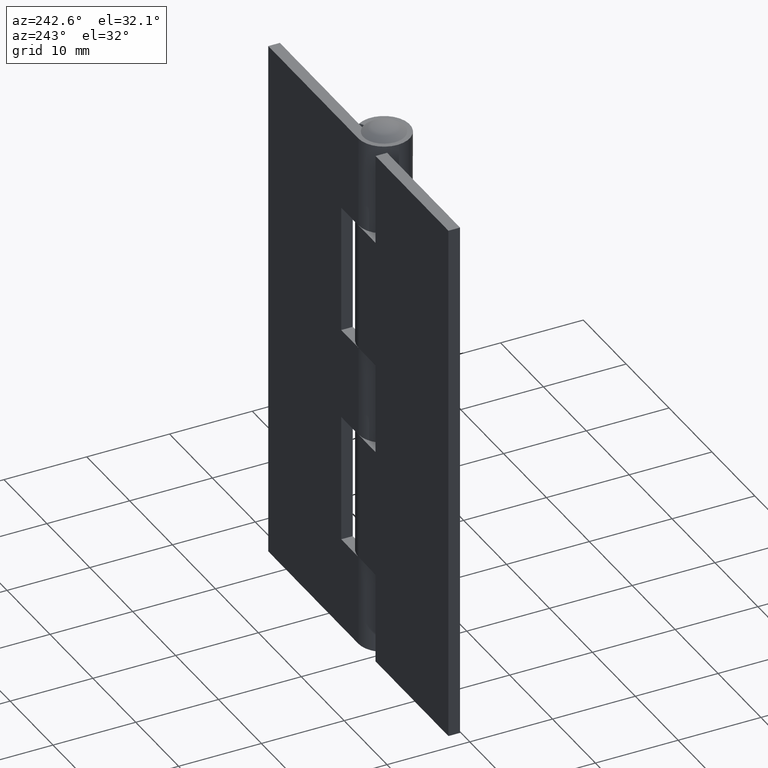
[diagram: clean part render]
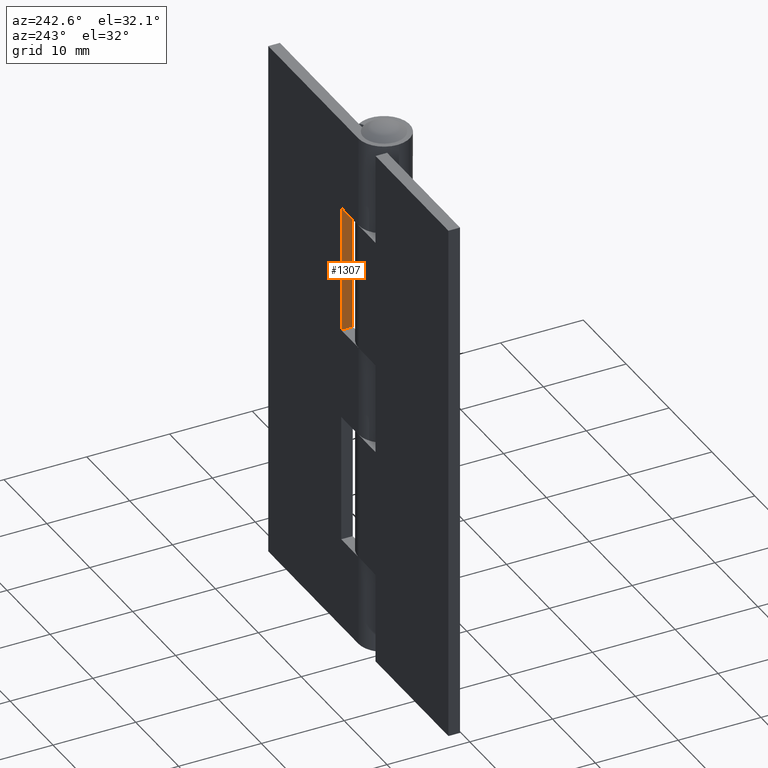
[diagram: same view with one face highlighted and labeled with its STEP entity id]
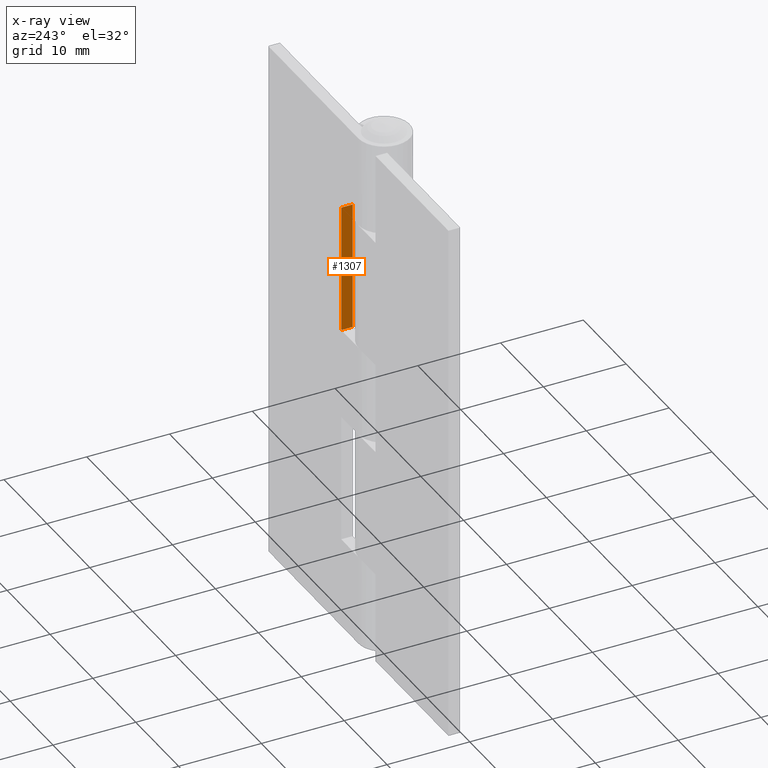
[diagram: x-ray of the same camera — body ghosted, the highlighted face saturated]
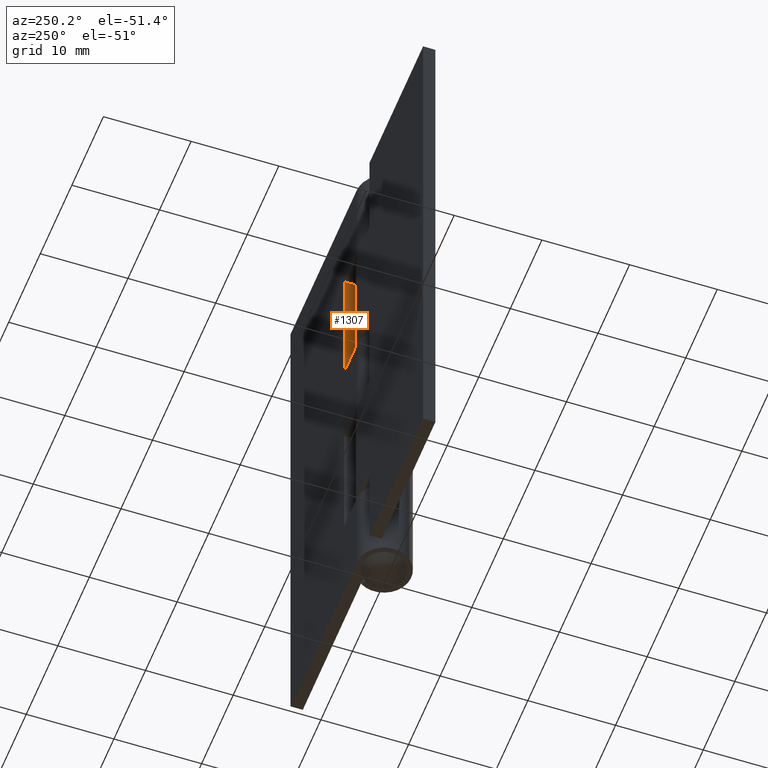
[diagram: same view with one face highlighted and labeled with its STEP entity id]
A machine part, auxiliary view. The second image highlights one B-rep face of the part: STEP entity #1307.
The next image is the same camera in x-ray: the body ghosted, the highlighted face saturated — about 0% of this face is hidden behind the body in this view.
A second angle (auxiliary view) of the same face is appended — the face is thin or edge-on in the first view.
In plain terms, the highlighted face is a freeform B-spline surface patch.
Its self-contained STEP definition (entity closure, byte-faithful):
#1165=CARTESIAN_POINT('',(4.0,1.699995999999925,53.000007999999802));
#1166=VERTEX_POINT('',#1165);
#1167=CARTESIAN_POINT('',(4.0,1.699995999999925,37.500000000000000));
#1168=VERTEX_POINT('',#1167);
#1169=CARTESIAN_POINT('',(4.0,1.699995999999925,53.000007999999802));
#1170=CARTESIAN_POINT('',(4.0,1.699995999999925,37.500000000000000));
#1171=QUASI_UNIFORM_CURVE('',1,(#1169,#1170),.UNSPECIFIED.,.F.,.U.);
#1172=EDGE_CURVE('',#1166,#1168,#1171,.T.);
#1270=CARTESIAN_POINT('',(4.0,3.099997999999935,53.000007999999802));
#1271=VERTEX_POINT('',#1270);
#1277=CARTESIAN_POINT('',(4.0,1.699995999999925,53.000007999999802));
#1278=CARTESIAN_POINT('',(4.0,3.099997999999935,53.000007999999802));
#1279=QUASI_UNIFORM_CURVE('',1,(#1277,#1278),.UNSPECIFIED.,.F.,.U.);
#1280=EDGE_CURVE('',#1166,#1271,#1279,.T.);
#1286=CARTESIAN_POINT('',(4.0,1.630065902813400,36.725774630442032));
#1287=CARTESIAN_POINT('',(4.0,1.630065902813400,53.774233785300382));
#1288=CARTESIAN_POINT('',(4.0,3.169928134737440,36.725774630442032));
#1289=CARTESIAN_POINT('',(4.0,3.169928134737440,53.774233785300382));
#1290=B_SPLINE_SURFACE_WITH_KNOTS('',1,1,((#1286,#1288),(#1287,#1289)),.UNSPECIFIED.,.F.,.F.,.U.,(2,2),(2,2),(0.0,17.048459154858350),(0.041708334948495,0.958291687403247),.UNSPECIFIED.);
#1291=ORIENTED_EDGE('',*,*,#1280,.T.);
#1292=CARTESIAN_POINT('',(4.0,3.099997999999935,37.500000000000000));
#1293=VERTEX_POINT('',#1292);
#1294=CARTESIAN_POINT('',(4.0,3.099997999999935,37.500000000000000));
#1295=CARTESIAN_POINT('',(4.0,3.099997999999935,53.000007999999802));
#1296=QUASI_UNIFORM_CURVE('',1,(#1294,#1295),.UNSPECIFIED.,.F.,.U.);
#1297=EDGE_CURVE('',#1293,#1271,#1296,.T.);
#1298=ORIENTED_EDGE('',*,*,#1297,.F.);
#1299=CARTESIAN_POINT('',(4.0,1.699995999999925,37.500000000000000));
#1300=CARTESIAN_POINT('',(4.0,3.099997999999935,37.500000000000000));
#1301=QUASI_UNIFORM_CURVE('',1,(#1299,#1300),.UNSPECIFIED.,.F.,.U.);
#1302=EDGE_CURVE('',#1168,#1293,#1301,.T.);
#1303=ORIENTED_EDGE('',*,*,#1302,.F.);
#1304=ORIENTED_EDGE('',*,*,#1172,.F.);
#1305=EDGE_LOOP('',(#1291,#1298,#1303,#1304));
#1306=FACE_OUTER_BOUND('',#1305,.T.);
#1307=ADVANCED_FACE('',(#1306),#1290,.T.);